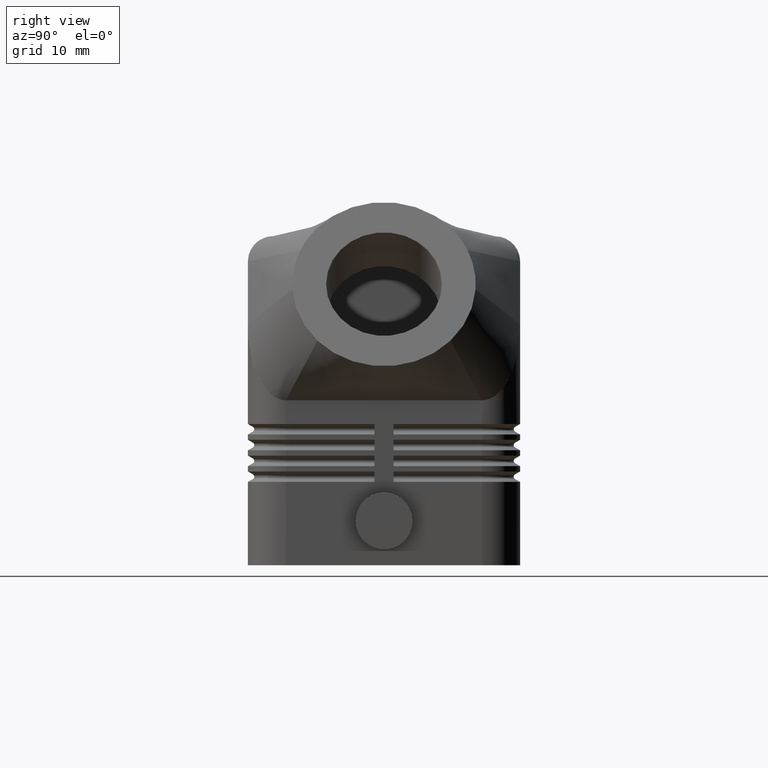
[diagram: clean part render]
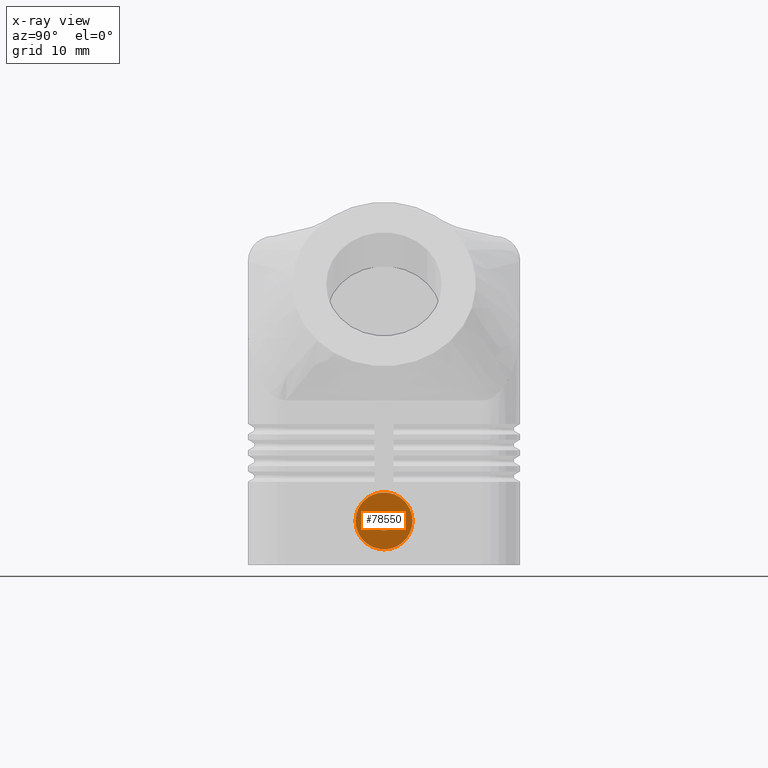
[diagram: x-ray — body ghosted, one internal face saturated and labeled with its STEP entity id]
A machine part, right view, then the same camera in x-ray: the body is ghosted and one INTERNAL B-rep face — a face not visible from any outside direction — is saturated and labeled: STEP entity #78550.
In plain terms, the highlighted planar face has unit normal (-1, 0, 0).
Its self-contained STEP definition (entity closure, byte-faithful):
#78160=CARTESIAN_POINT('',(-42.3,4.5,11.5));
#78170=DIRECTION('',(-1.,0.,0.));
#78180=DIRECTION('',(0.,1.,0.));
#78190=AXIS2_PLACEMENT_3D('',#78160,#78170,#78180);
#78200=PLANE('',#78190);
#78210=CARTESIAN_POINT('',(-42.3,2.66453525910038E-15,7.));
#78220=DIRECTION('',(-1.,0.,0.));
#78230=DIRECTION('',(0.,1.,0.));
#78240=AXIS2_PLACEMENT_3D('',#78210,#78220,#78230);
#78250=CIRCLE('',#78240,4.5);
#78260=CARTESIAN_POINT('',(-42.3,-4.5,7.));
#78270=VERTEX_POINT('',#78260);
#78280=CARTESIAN_POINT('',(-42.3,4.50000000000001,7.));
#78290=VERTEX_POINT('',#78280);
#78300=EDGE_CURVE('',#78270,#78290,#78250,.T.);
#78310=ORIENTED_EDGE('',*,*,#78300,.T.);
#78320=CARTESIAN_POINT('',(-42.3,5.5107285922007E-16,2.49999999999996));
#78330=VERTEX_POINT('',#78320);
#78340=EDGE_CURVE('',#78330,#78270,#78250,.T.);
#78350=ORIENTED_EDGE('',*,*,#78340,.T.);
#78360=EDGE_CURVE('',#78290,#78330,#78250,.T.);
#78370=ORIENTED_EDGE('',*,*,#78360,.T.);
#78380=EDGE_LOOP('',(#78370,#78350,#78310));
#78390=FACE_OUTER_BOUND('',#78380,.T.);
#78400=CARTESIAN_POINT('',(-42.3,-2.77555756156289E-16,6.99999999999996)
);
#78410=DIRECTION('',(-1.,0.,0.));
#78420=DIRECTION('',(0.,1.,0.));
#78430=AXIS2_PLACEMENT_3D('',#78400,#78410,#78420);
#78440=CIRCLE('',#78430,1.5);
#78450=CARTESIAN_POINT('',(-42.3,-1.5,6.99999999999996));
#78460=VERTEX_POINT('',#78450);
#78470=CARTESIAN_POINT('',(-42.3,1.5,6.99999999999996));
#78480=VERTEX_POINT('',#78470);
#78490=EDGE_CURVE('',#78460,#78480,#78440,.T.);
#78500=ORIENTED_EDGE('',*,*,#78490,.F.);
#78510=EDGE_CURVE('',#78480,#78460,#78440,.T.);
#78520=ORIENTED_EDGE('',*,*,#78510,.F.);
#78530=EDGE_LOOP('',(#78520,#78500));
#78540=FACE_BOUND('',#78530,.T.);
#78550=ADVANCED_FACE('',(#78390,#78540),#78200,.T.);